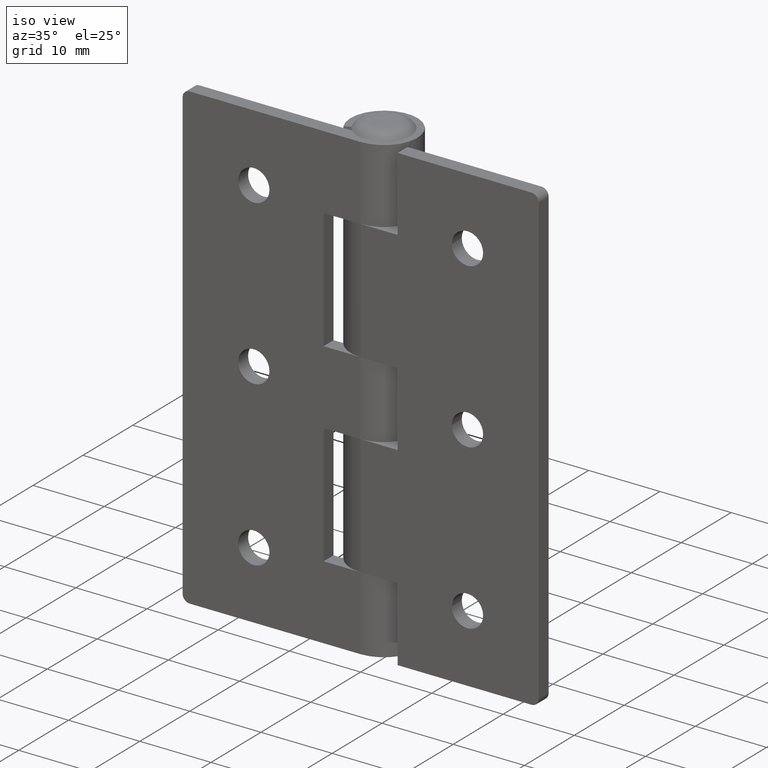
[diagram: clean part render]
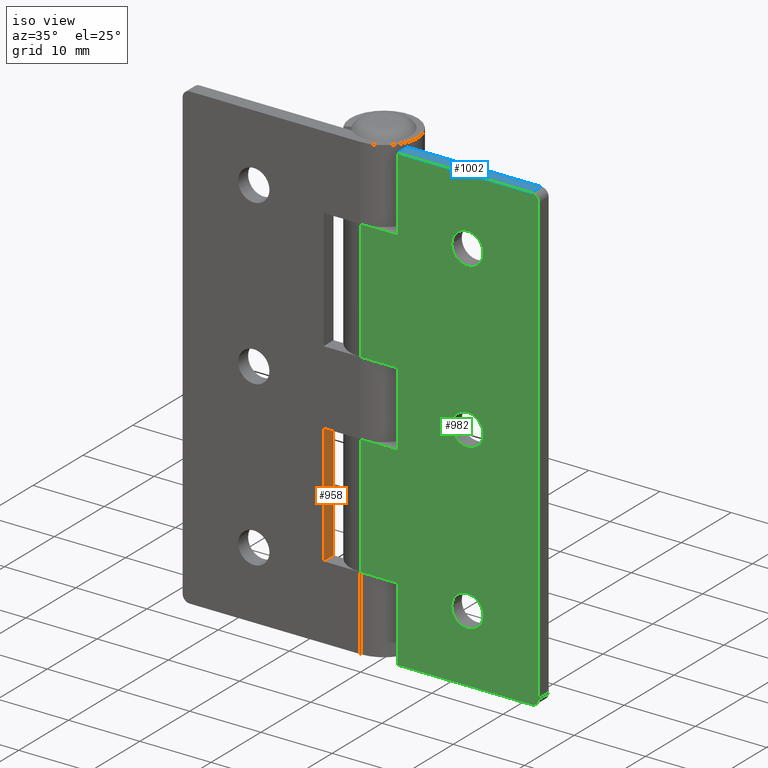
[diagram: same view with three faces highlighted in distinct colors, each labeled with its STEP entity id]
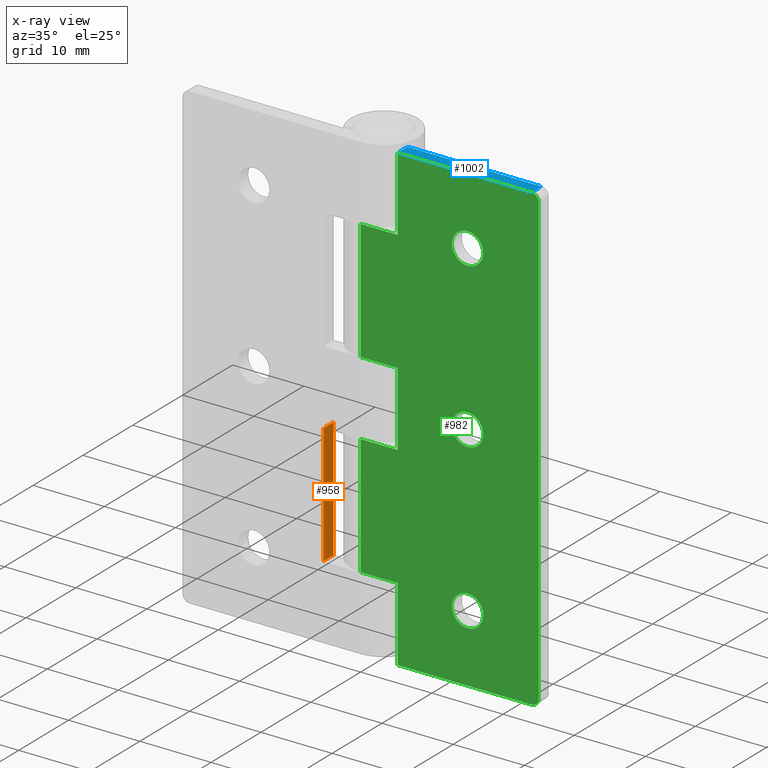
[diagram: x-ray of the same camera — body ghosted, the three highlighted faces saturated]
A machine part, iso view with three faces highlighted in distinct colors.
The next image is the same camera in x-ray (body ghosted, the three faces saturated) — at least one of them is partly hidden behind the body in this view.
Their STEP definitions:

[orange] entity #958 — the highlighted planar face has unit normal (-1, -0, -0).
#59=PLANE('',#1033);
#96=FACE_OUTER_BOUND('',#160,.T.);
#160=EDGE_LOOP('',(#729,#730,#731,#732));
#232=LINE('',#1450,#318);
#241=LINE('',#1480,#327);
#249=LINE('',#1505,#335);
#251=LINE('',#1510,#337);
#318=VECTOR('',#1143,16.9);
#327=VECTOR('',#1170,16.9);
#335=VECTOR('',#1194,2.);
#337=VECTOR('',#1200,2.);
#453=VERTEX_POINT('',#1447);
#454=VERTEX_POINT('',#1449);
#465=VERTEX_POINT('',#1477);
#466=VERTEX_POINT('',#1479);
#549=EDGE_CURVE('',#453,#454,#232,.T.);
#564=EDGE_CURVE('',#465,#466,#241,.T.);
#576=EDGE_CURVE('',#466,#453,#249,.T.);
#579=EDGE_CURVE('',#465,#454,#251,.T.);
#729=ORIENTED_EDGE('',*,*,#549,.F.);
#730=ORIENTED_EDGE('',*,*,#576,.F.);
#731=ORIENTED_EDGE('',*,*,#564,.F.);
#732=ORIENTED_EDGE('',*,*,#579,.T.);
#958=ADVANCED_FACE('',(#96),#59,.F.);
#1033=AXIS2_PLACEMENT_3D('',#1509,#1198,#1199);
#1143=DIRECTION('',(1.31387340192326E-16,5.25129300812804E-32,-1.));
#1170=DIRECTION('',(-1.31387340192326E-16,-3.93846975609603E-32,1.));
#1194=DIRECTION('',(-2.77555756156289E-16,1.,0.));
#1198=DIRECTION('center_axis',(-1.,-2.77555756156289E-16,-1.31387340192326E-16));
#1199=DIRECTION('ref_axis',(-8.88178419700125E-17,-3.94430452610506E-32,
1.));
#1200=DIRECTION('',(-2.77555756156289E-16,1.,0.));
#1447=CARTESIAN_POINT('',(-5.2,2.,-5.2));
#1449=CARTESIAN_POINT('',(-5.2,2.,-22.1));
#1450=CARTESIAN_POINT('',(-5.2,2.,-11.05));
#1477=CARTESIAN_POINT('',(-5.2,-1.55875312657372E-15,-22.1));
#1479=CARTESIAN_POINT('',(-5.2,-1.55875312657372E-15,-5.2));
#1480=CARTESIAN_POINT('',(-5.2,-1.55875312657372E-15,-11.05));
#1505=CARTESIAN_POINT('',(-5.2,-1.55875312657372E-15,-5.2));
#1509=CARTESIAN_POINT('Origin',(-5.2,-1.55875312657372E-15,-22.1));
#1510=CARTESIAN_POINT('',(-5.2,-1.55875312657372E-15,-22.1));

[blue] entity #1002 — the highlighted planar face has unit normal (0, 0, -1).
#85=PLANE('',#1108);
#140=FACE_OUTER_BOUND('',#218,.T.);
#218=EDGE_LOOP('',(#923,#924,#925,#926));
#263=LINE('',#1573,#349);
#268=LINE('',#1585,#354);
#290=LINE('',#1638,#376);
#296=LINE('',#1666,#382);
#349=VECTOR('',#1284,2.);
#354=VECTOR('',#1295,18.8);
#376=VECTOR('',#1331,18.8);
#382=VECTOR('',#1367,2.);
#490=VERTEX_POINT('',#1570);
#491=VERTEX_POINT('',#1572);
#495=VERTEX_POINT('',#1584);
#519=VERTEX_POINT('',#1636);
#604=EDGE_CURVE('',#490,#491,#263,.T.);
#610=EDGE_CURVE('',#495,#491,#268,.T.);
#637=EDGE_CURVE('',#490,#519,#290,.T.);
#650=EDGE_CURVE('',#519,#495,#296,.T.);
#923=ORIENTED_EDGE('',*,*,#604,.F.);
#924=ORIENTED_EDGE('',*,*,#637,.T.);
#925=ORIENTED_EDGE('',*,*,#650,.T.);
#926=ORIENTED_EDGE('',*,*,#610,.T.);
#1002=ADVANCED_FACE('',(#140),#85,.F.);
#1108=AXIS2_PLACEMENT_3D('',#1692,#1402,#1403);
#1284=DIRECTION('',(0.,-1.,0.));
#1295=DIRECTION('',(-1.,-2.99760216648792E-16,0.));
#1331=DIRECTION('',(1.,3.99680288865056E-16,0.));
#1367=DIRECTION('',(2.77555756156289E-16,-1.,0.));
#1402=DIRECTION('center_axis',(0.,0.,1.));
#1403=DIRECTION('ref_axis',(1.,0.,0.));
#1570=CARTESIAN_POINT('',(-24.,1.99999999999999,-32.5));
#1572=CARTESIAN_POINT('',(-24.,-7.19424519957101E-15,-32.5));
#1573=CARTESIAN_POINT('',(-24.,1.65128592529688,-32.5));
#1584=CARTESIAN_POINT('',(-5.19999999999999,-1.55875312657372E-15,-32.5));
#1585=CARTESIAN_POINT('',(-25.,-7.49400541621981E-15,-32.5));
#1636=CARTESIAN_POINT('',(-5.19999999999999,2.,-32.5));
#1638=CARTESIAN_POINT('',(0.,2.,-32.5));
#1666=CARTESIAN_POINT('',(-5.19999999999999,0.651285925296884,-32.5));
#1692=CARTESIAN_POINT('Origin',(-1.566056963984,1.30257185059377,-32.5));

[green] entity #982 — the highlighted planar face has unit normal (0, -1, 0).
#45=FACE_BOUND('',#190,.T.);
#46=FACE_BOUND('',#191,.T.);
#47=FACE_BOUND('',#192,.T.);
#73=PLANE('',#1072);
#120=FACE_OUTER_BOUND('',#189,.T.);
#189=EDGE_LOOP('',(#815,#816,#817,#818,#819,#820,#821,#822,#823,#824,#825,
#826,#827,#828));
#190=EDGE_LOOP('',(#829));
#191=EDGE_LOOP('',(#830));
#192=EDGE_LOOP('',(#831));
#265=LINE('',#1579,#351);
#268=LINE('',#1585,#354);
#269=LINE('',#1587,#355);
#270=LINE('',#1589,#356);
#271=LINE('',#1591,#357);
#272=LINE('',#1593,#358);
#273=LINE('',#1595,#359);
#274=LINE('',#1597,#360);
#275=LINE('',#1599,#361);
#276=LINE('',#1601,#362);
#277=LINE('',#1603,#363);
#278=LINE('',#1605,#364);
#351=VECTOR('',#1290,63.);
#354=VECTOR('',#1295,18.8);
#355=VECTOR('',#1296,10.4);
#356=VECTOR('',#1297,5.2);
#357=VECTOR('',#1298,16.9);
#358=VECTOR('',#1299,5.2);
#359=VECTOR('',#1300,10.4);
#360=VECTOR('',#1301,5.2);
#361=VECTOR('',#1302,16.9);
#362=VECTOR('',#1303,5.2);
#363=VECTOR('',#1304,10.4);
#364=VECTOR('',#1305,18.8);
#420=CIRCLE('',#1070,1.);
#421=CIRCLE('',#1073,1.);
#422=CIRCLE('',#1074,2.2);
#423=CIRCLE('',#1075,2.2);
#424=CIRCLE('',#1076,2.2);
#491=VERTEX_POINT('',#1572);
#492=VERTEX_POINT('',#1574);
#493=VERTEX_POINT('',#1578);
#495=VERTEX_POINT('',#1584);
#496=VERTEX_POINT('',#1586);
#497=VERTEX_POINT('',#1588);
#498=VERTEX_POINT('',#1590);
#499=VERTEX_POINT('',#1592);
#500=VERTEX_POINT('',#1594);
#501=VERTEX_POINT('',#1596);
#502=VERTEX_POINT('',#1598);
#503=VERTEX_POINT('',#1600);
#504=VERTEX_POINT('',#1602);
#505=VERTEX_POINT('',#1604);
#506=VERTEX_POINT('',#1607);
#507=VERTEX_POINT('',#1609);
#508=VERTEX_POINT('',#1611);
#605=EDGE_CURVE('',#491,#492,#420,.T.);
#607=EDGE_CURVE('',#492,#493,#265,.T.);
#610=EDGE_CURVE('',#495,#491,#268,.T.);
#611=EDGE_CURVE('',#495,#496,#269,.T.);
#612=EDGE_CURVE('',#496,#497,#270,.T.);
#613=EDGE_CURVE('',#497,#498,#271,.T.);
#614=EDGE_CURVE('',#498,#499,#272,.T.);
#615=EDGE_CURVE('',#499,#500,#273,.T.);
#616=EDGE_CURVE('',#500,#501,#274,.T.);
#617=EDGE_CURVE('',#501,#502,#275,.T.);
#618=EDGE_CURVE('',#502,#503,#276,.T.);
#619=EDGE_CURVE('',#503,#504,#277,.T.);
#620=EDGE_CURVE('',#505,#504,#278,.T.);
#621=EDGE_CURVE('',#493,#505,#421,.T.);
#622=EDGE_CURVE('',#506,#506,#422,.T.);
#623=EDGE_CURVE('',#507,#507,#423,.T.);
#624=EDGE_CURVE('',#508,#508,#424,.T.);
#815=ORIENTED_EDGE('',*,*,#605,.F.);
#816=ORIENTED_EDGE('',*,*,#610,.F.);
#817=ORIENTED_EDGE('',*,*,#611,.T.);
#818=ORIENTED_EDGE('',*,*,#612,.T.);
#819=ORIENTED_EDGE('',*,*,#613,.T.);
#820=ORIENTED_EDGE('',*,*,#614,.T.);
#821=ORIENTED_EDGE('',*,*,#615,.T.);
#822=ORIENTED_EDGE('',*,*,#616,.T.);
#823=ORIENTED_EDGE('',*,*,#617,.T.);
#824=ORIENTED_EDGE('',*,*,#618,.T.);
#825=ORIENTED_EDGE('',*,*,#619,.T.);
#826=ORIENTED_EDGE('',*,*,#620,.F.);
#827=ORIENTED_EDGE('',*,*,#621,.F.);
#828=ORIENTED_EDGE('',*,*,#607,.F.);
#829=ORIENTED_EDGE('',*,*,#622,.T.);
#830=ORIENTED_EDGE('',*,*,#623,.T.);
#831=ORIENTED_EDGE('',*,*,#624,.T.);
#982=ADVANCED_FACE('',(#120,#45,#46,#47),#73,.T.);
#1070=AXIS2_PLACEMENT_3D('',#1575,#1285,#1286);
#1072=AXIS2_PLACEMENT_3D('',#1583,#1293,#1294);
#1073=AXIS2_PLACEMENT_3D('',#1606,#1306,#1307);
#1074=AXIS2_PLACEMENT_3D('',#1608,#1308,#1309);
#1075=AXIS2_PLACEMENT_3D('',#1610,#1310,#1311);
#1076=AXIS2_PLACEMENT_3D('',#1612,#1312,#1313);
#1285=DIRECTION('center_axis',(-2.99760216648792E-16,1.,0.));
#1286=DIRECTION('ref_axis',(-0.707106781186548,0.,-0.707106781186548));
#1290=DIRECTION('',(0.,0.,1.));
#1293=DIRECTION('center_axis',(2.99760216648792E-16,-1.,0.));
#1294=DIRECTION('ref_axis',(1.,2.99760216648792E-16,0.));
#1295=DIRECTION('',(-1.,-2.99760216648792E-16,0.));
#1296=DIRECTION('',(-4.2700885562506E-16,-1.28000267073121E-31,1.));
#1297=DIRECTION('',(1.,2.99760216648792E-16,0.));
#1298=DIRECTION('',(0.,0.,1.));
#1299=DIRECTION('',(-1.,-2.99760216648792E-16,0.));
#1300=DIRECTION('',(-2.1350442781253E-16,-6.40001335365605E-32,1.));
#1301=DIRECTION('',(1.,2.99760216648792E-16,4.48574959444508E-16));
#1302=DIRECTION('',(0.,0.,1.));
#1303=DIRECTION('',(-1.,-2.99760216648792E-16,-2.24287479722254E-16));
#1304=DIRECTION('',(-2.1350442781253E-16,-6.40001335365605E-32,1.));
#1305=DIRECTION('',(1.,2.99760216648792E-16,0.));
#1306=DIRECTION('center_axis',(-2.99760216648792E-16,1.,0.));
#1307=DIRECTION('ref_axis',(-0.707106781186548,0.,0.707106781186548));
#1308=DIRECTION('center_axis',(-2.99760216648792E-16,1.,0.));
#1309=DIRECTION('ref_axis',(1.,3.99680288865056E-16,0.));
#1310=DIRECTION('center_axis',(-2.99760216648792E-16,1.,0.));
#1311=DIRECTION('ref_axis',(1.,3.99680288865056E-16,0.));
#1312=DIRECTION('center_axis',(-2.99760216648792E-16,1.,0.));
#1313=DIRECTION('ref_axis',(1.,3.99680288865056E-16,0.));
#1572=CARTESIAN_POINT('',(-24.,-7.19424519957101E-15,-32.5));
#1574=CARTESIAN_POINT('',(-25.,-7.49400541621981E-15,-31.5));
#1575=CARTESIAN_POINT('Origin',(-24.,-7.49400541621981E-15,-31.5));
#1578=CARTESIAN_POINT('',(-25.,-7.49400541621981E-15,31.5));
#1579=CARTESIAN_POINT('',(-25.,-7.49400541621981E-15,0.));
#1583=CARTESIAN_POINT('Origin',(-25.,-7.49400541621981E-15,0.));
#1584=CARTESIAN_POINT('',(-5.19999999999999,-1.55875312657372E-15,-32.5));
#1585=CARTESIAN_POINT('',(-25.,-7.49400541621981E-15,-32.5));
#1586=CARTESIAN_POINT('',(-5.2,-1.55875312657372E-15,-22.1));
#1587=CARTESIAN_POINT('',(-5.2,-1.55875312657372E-15,-16.25));
#1588=CARTESIAN_POINT('',(1.85305200950611E-15,0.,-22.1));
#1589=CARTESIAN_POINT('',(-15.1,-4.52637927139676E-15,-22.1));
#1590=CARTESIAN_POINT('',(1.85305200950611E-15,0.,-5.2));
#1591=CARTESIAN_POINT('',(1.85305200950611E-15,0.,0.));
#1592=CARTESIAN_POINT('',(-5.2,-1.55875312657372E-15,-5.2));
#1593=CARTESIAN_POINT('',(-10.15,-3.04256619898524E-15,-5.2));
#1594=CARTESIAN_POINT('',(-5.2,-1.55875312657372E-15,5.2));
#1595=CARTESIAN_POINT('',(-5.2,-1.55875312657372E-15,-2.6));
#1596=CARTESIAN_POINT('',(1.85305200950611E-15,0.,5.2));
#1597=CARTESIAN_POINT('',(-15.1,-4.52637927139676E-15,5.19999999999999));
#1598=CARTESIAN_POINT('',(1.85305200950611E-15,0.,22.1));
#1599=CARTESIAN_POINT('',(1.85305200950611E-15,0.,0.));
#1600=CARTESIAN_POINT('',(-5.2,-1.55875312657372E-15,22.1));
#1601=CARTESIAN_POINT('',(-10.15,-3.04256619898524E-15,22.1));
#1602=CARTESIAN_POINT('',(-5.2,-1.55875312657372E-15,32.5));
#1603=CARTESIAN_POINT('',(-5.2,-1.55875312657372E-15,11.05));
#1604=CARTESIAN_POINT('',(-24.,-7.19424519957101E-15,32.5));
#1605=CARTESIAN_POINT('',(-25.,-7.49400541621981E-15,32.5));
#1606=CARTESIAN_POINT('Origin',(-24.,-7.49400541621981E-15,31.5));
#1607=CARTESIAN_POINT('',(-17.2,-4.48752146553488E-15,2.69422295812418E-16));
#1608=CARTESIAN_POINT('Origin',(-15.,-3.60822483003176E-15,0.));
#1609=CARTESIAN_POINT('',(-17.2,-4.48752146553488E-15,23.));
#1610=CARTESIAN_POINT('Origin',(-15.,-3.60822483003176E-15,23.));
#1611=CARTESIAN_POINT('',(-17.2,-4.48752146553488E-15,-23.));
#1612=CARTESIAN_POINT('Origin',(-15.,-3.60822483003176E-15,-23.));